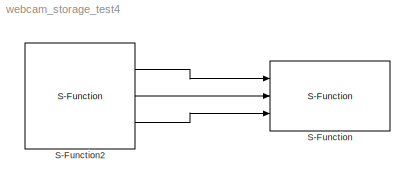
MODEL webcam_storage_test4
KIND model
BLOCK [S-Function] S-Function
  EnableBusSupport = off
  FunctionName = videoExport_v2
  Ports = [3]
BLOCK [S-Function] S-Function2
  EnableBusSupport = off
  FunctionName = WebcamTest
  Ports = [0, 3]
LINE S-Function2:1 -> S-Function:1
LINE S-Function2:2 -> S-Function:2
LINE S-Function2:3 -> S-Function:3
